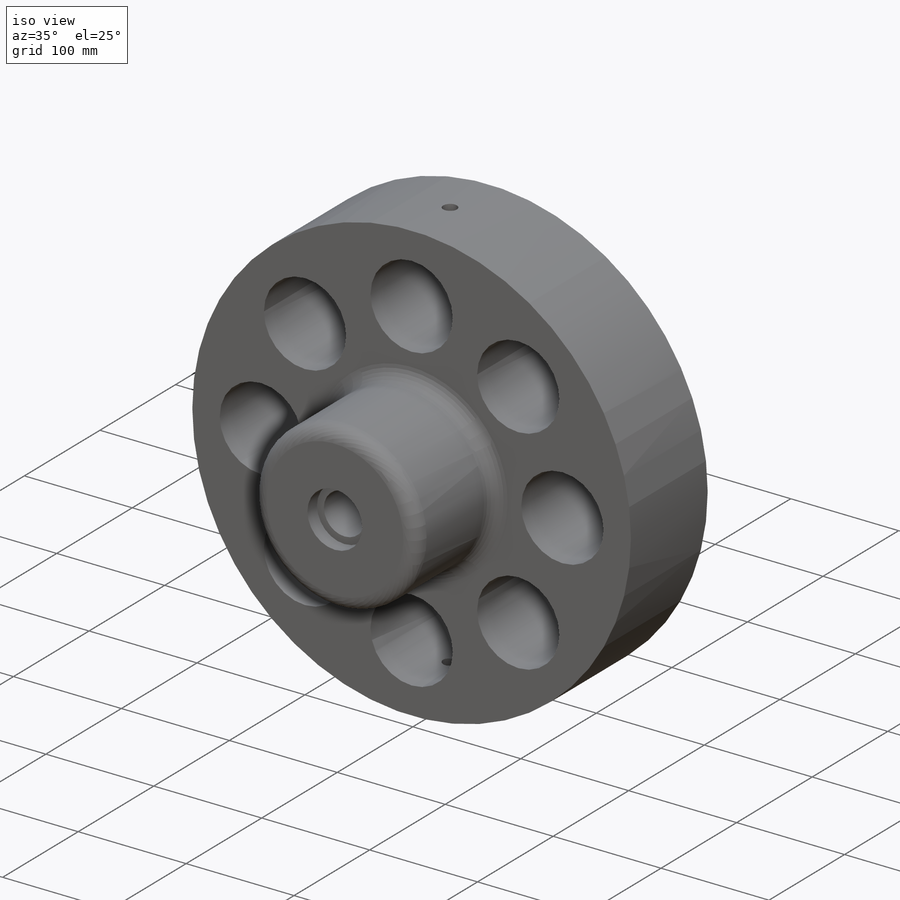
[diagram: iso view]
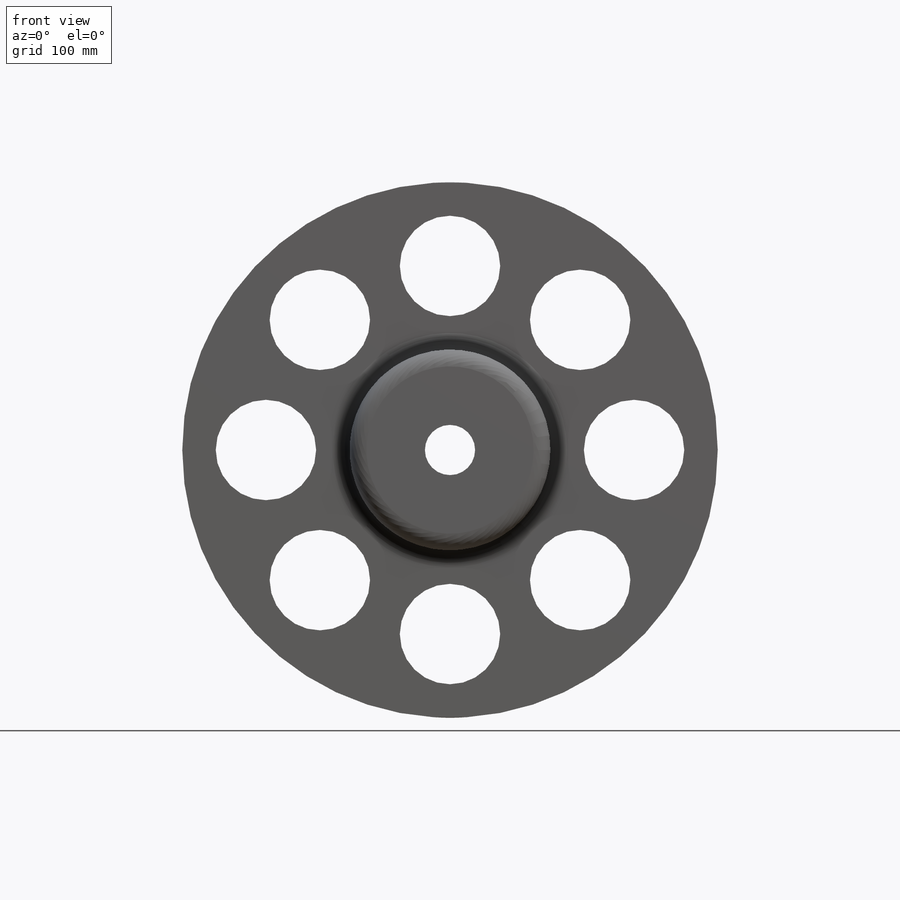
[diagram: front view]
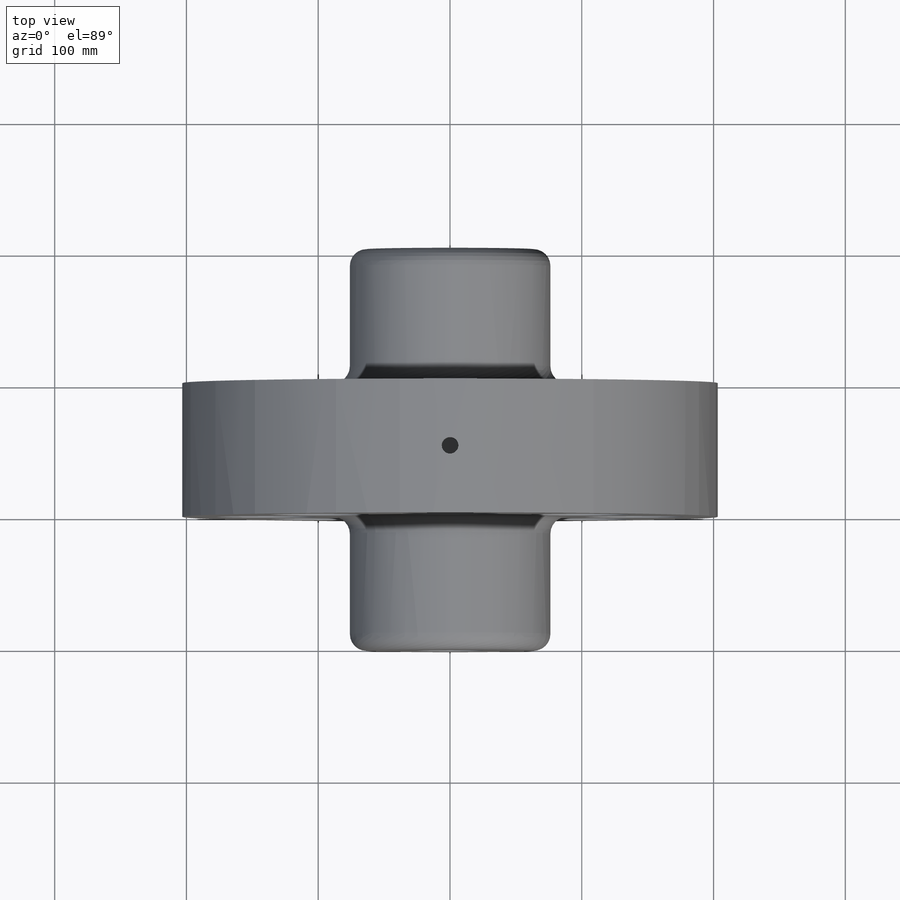
[diagram: top view]
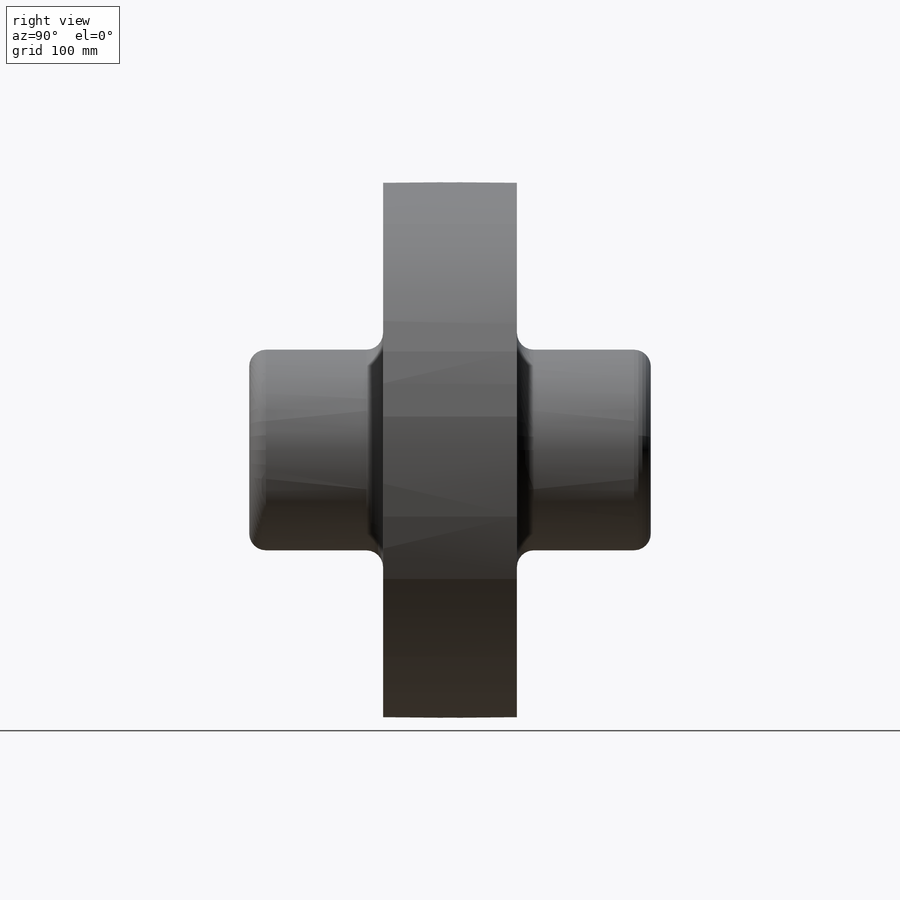
[diagram: right view]
SOLIDWORKS PART (.sldprt)
format: sldprt  version: not decoded by parser v0  size: 314,368 bytes
history: native  units: mm
features: sketch x9, cut_extrude x7, extrude x2, fillet x2, plane x2, material x1, pattern_circular x1 (+11 scaffold rows collapsed)
feature tree (35):
  scaffold x11  (default folders/planes/origin — collapsed)
  material  "6061 Alloy"
  sketch  "Sketch1"  dims[D1=406.4mm]
  extrude  "Boss-Extrude1"  Depth=101.6mm
  sketch  "Sketch2"  dims[D1=38.1mm]
  cut_extrude  "Cut-Extrude1"  Depth=101.6mm
  sketch  "Sketch3"  dims[D1=152.4mm]
  extrude  "Boss-Extrude2"  Depth=101.6mm
  sketch  "Sketch4"  dims[D1=38.1mm]
  cut_extrude  "Cut-Extrude2"  [1 undecoded]
  sketch  "Sketch5"  dims[c1.D1=76.2mm c1.D3=406.4mm c1.D2=~137.794319mm c2.D3=~137.794319mm c2.D2=139.7mm]
  cut_extrude  "Cut-Extrude3"  Depth=101.6mm
  pattern_circular  "CirPattern1"  Count=8 Angle=360deg
  fillet  "Fillet1"  Radius=12.7mm
  fillet  "Fillet2"  Radius=12.7mm
  plane  "Plane1"
  sketch  "Sketch6"  dims[D1=12.7mm D2=50.8mm]
  cut_extrude  "Cut-Extrude4"  [1 undecoded]
  plane  "Plane2"
  sketch  "Sketch7"  dims[D1=12.7mm D2=50.8mm]
  cut_extrude  "Cut-Extrude5"  [1 undecoded]
  sketch  "Sketch8"  dims[D1=50.8mm]
  cut_extrude  "Cut-Extrude6"  Depth=12.7mm
  sketch  "Sketch9"  dims[D1=50.8mm]
  cut_extrude  "Cut-Extrude7"  Depth=12.7mm
decode coverage: 18 of 21 modeling features carry decoded parameters
note: ~ marks probable driven/reference dimensions
note: 3 parameter values undecoded
summary: no parameter record found for 3 features
note: suppression state not decoded; provenance and decode notes live in map.json
